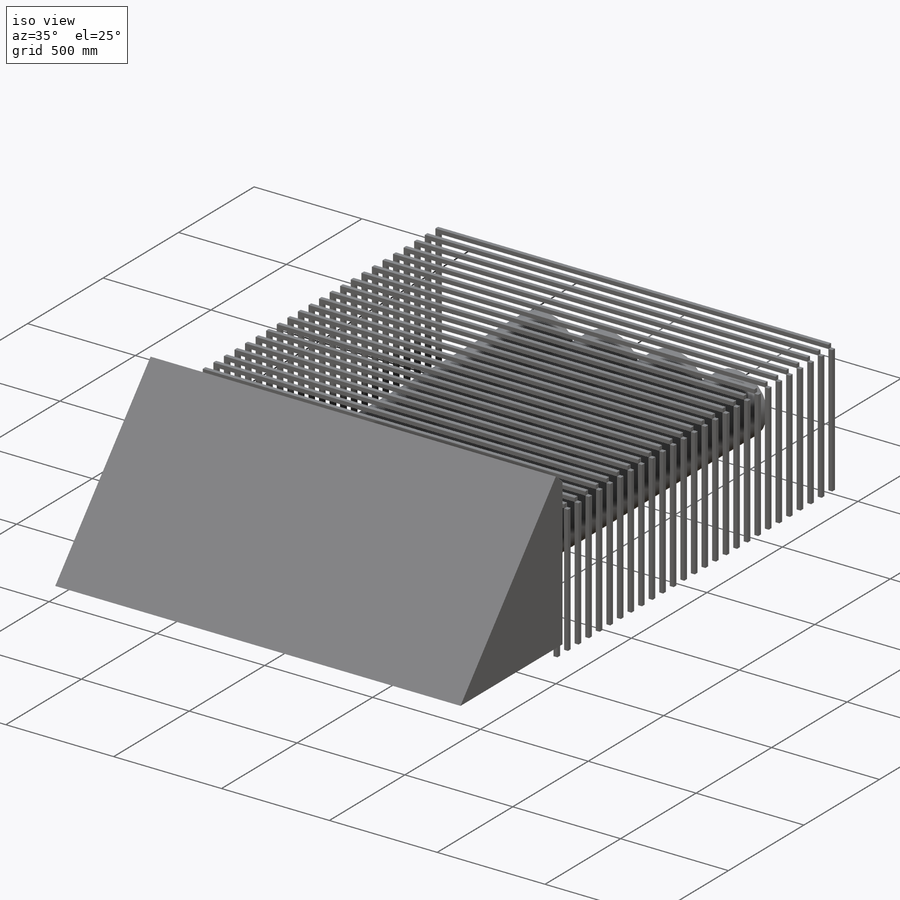
[diagram: iso view]
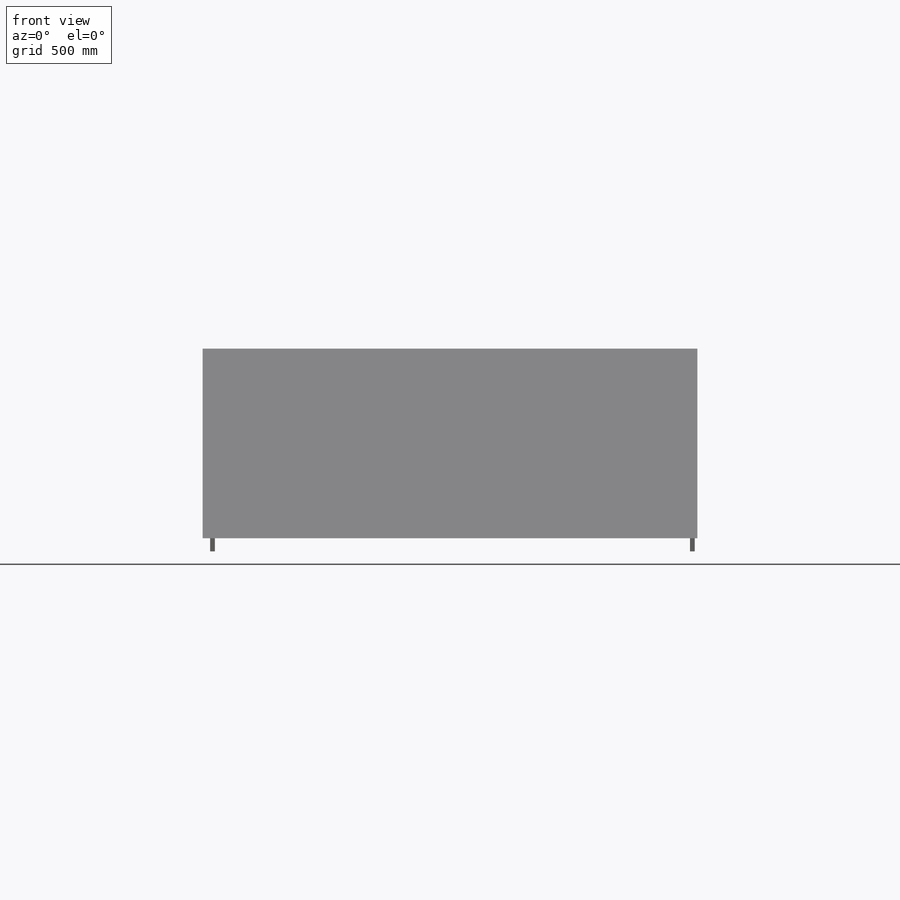
[diagram: front view]
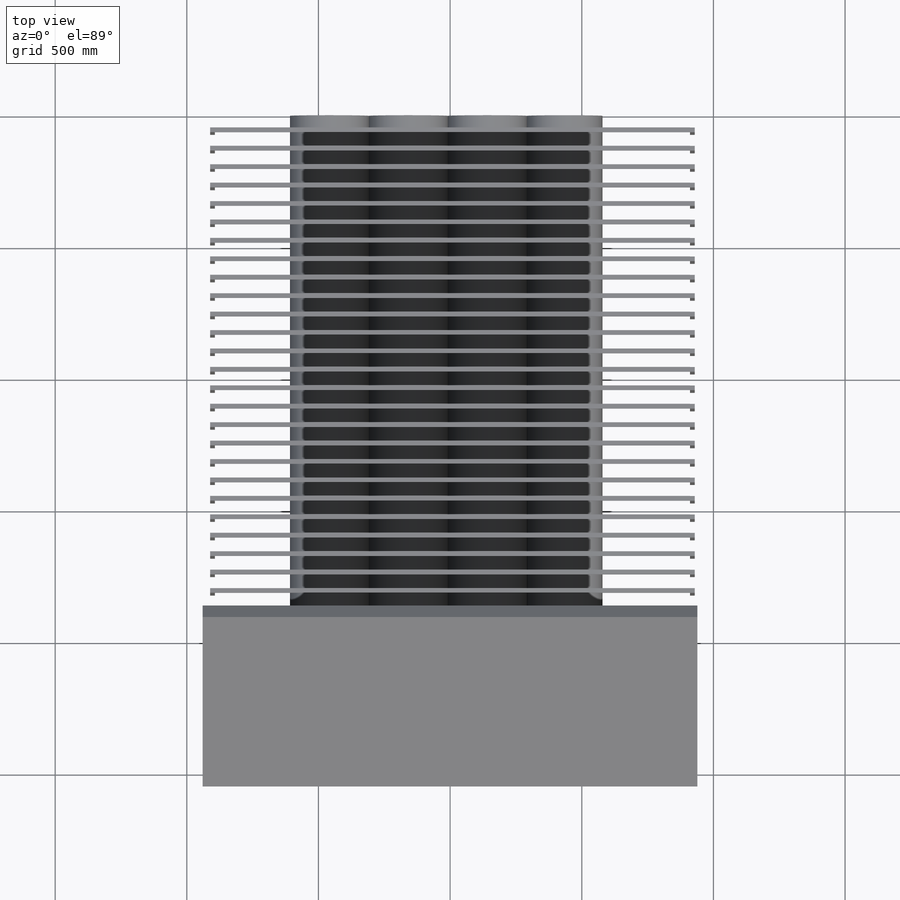
[diagram: top view]
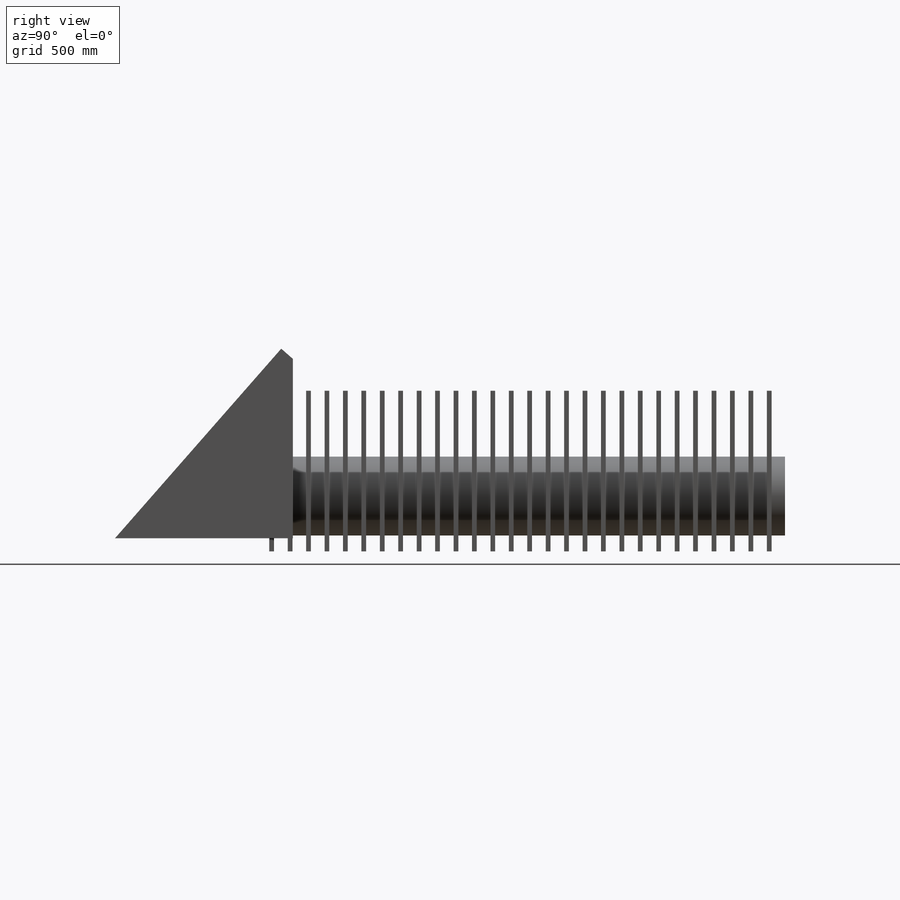
[diagram: right view]
SOLIDWORKS PART (.sldprt)
format: sldprt  version: not decoded by parser v0  size: 971,264 bytes
history: native  units: mm
features: sketch x7, extrude x6, material x1 (+12 scaffold rows collapsed)
feature tree (26):
  scaffold x12  (default folders/planes/origin — collapsed)
  material  "Material <not specified>"
  sketch  "Sketch1"  dims[c1.D2=300.0mm c1.D1=300.0mm c1.D3=300.0mm c1.D4=~194.448534mm c2.D1=500.0mm c2.D2=500.0mm c2.D3=500.0mm]
  extrude  "Boss-Extrude2"  Depth=2000mm
  sketch  "Sketch2"  dims[D1=429.0mm D2=1430.0mm D5=10.0mm D6=1.0mm D7=5.0mm]
  sketch  "Sketch3"  dims[D2=18.0mm D3=592.0mm D1=27.0]
  extrude  "Boss-Extrude3"  Depth=18mm
  sketch  "Sketch4"  dims[D1=28.0]
  extrude  "Boss-Extrude4"  Depth=18mm
  sketch  "Sketch5"  dims[D2=610.0mm D1=28.0]
  extrude  "Boss-Extrude5"  Depth=18mm
  sketch  "Sketch6"
  extrude  "Boss-Extrude6"  Depth=10mm
  sketch  "Sketch7"
  extrude  "Boss-Extrude7"  Depth=10mm
decode coverage: 11 of 13 modeling features carry decoded parameters
note: ~ marks probable driven/reference dimensions
note: suppression state not decoded; provenance and decode notes live in map.json
